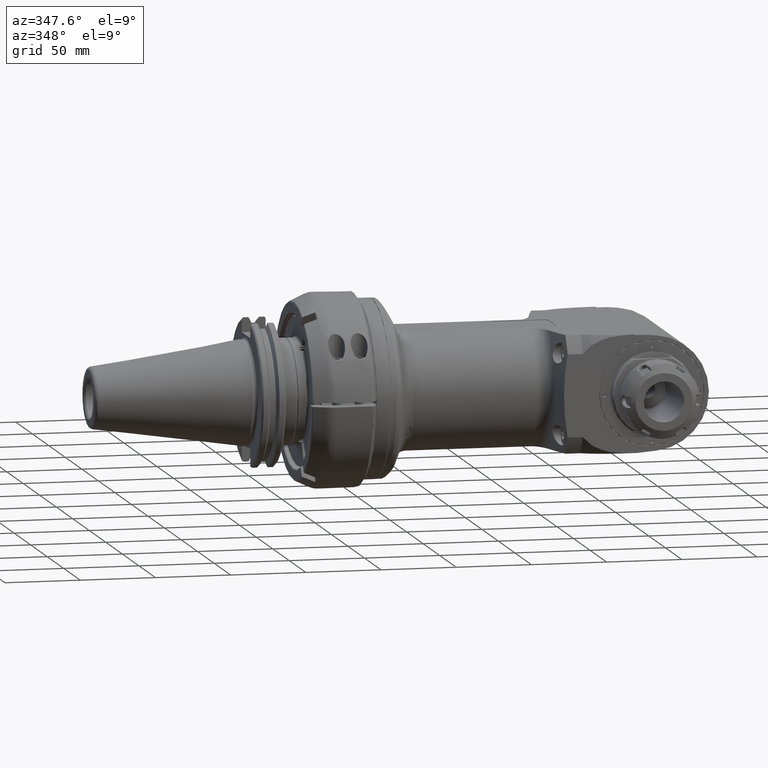
[diagram: clean part render]
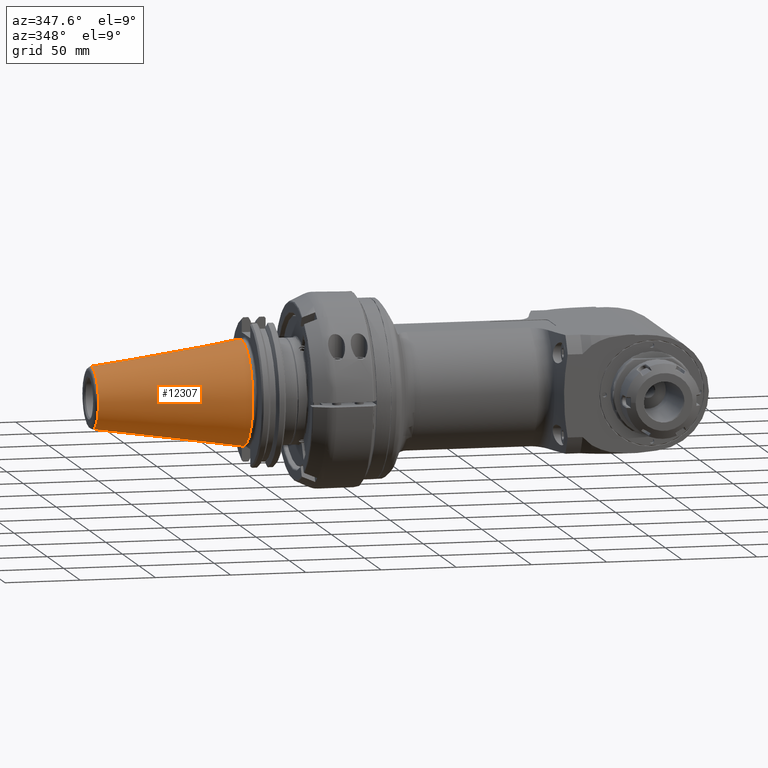
[diagram: same view with one face highlighted and labeled with its STEP entity id]
A machine part, auxiliary view. The second image highlights one B-rep face of the part: STEP entity #12307.
In plain terms, the highlighted conical surface has half-angle 8.297 deg.
Its self-contained STEP definition (entity closure, byte-faithful):
#131=CONICAL_SURFACE('',#13263,27.67265681028,0.144812411498922);
#868=CIRCLE('',#13261,34.925);
#869=CIRCLE('',#13262,34.925);
#870=CIRCLE('',#13264,20.42031362057);
#871=CIRCLE('',#13265,20.42031362057);
#1398=FACE_OUTER_BOUND('',#2082,.T.);
#2082=EDGE_LOOP('',(#8599,#8600,#8601,#8602,#8603,#8604));
#3053=LINE('',#18558,#4001);
#4001=VECTOR('',#14759,27.67265681028);
#5015=VERTEX_POINT('',#18551);
#5016=VERTEX_POINT('',#18552);
#5017=VERTEX_POINT('',#18557);
#5018=VERTEX_POINT('',#18559);
#6441=EDGE_CURVE('',#5015,#5016,#868,.T.);
#6443=EDGE_CURVE('',#5016,#5015,#869,.T.);
#6444=EDGE_CURVE('',#5015,#5017,#3053,.T.);
#6445=EDGE_CURVE('',#5018,#5017,#870,.T.);
#6446=EDGE_CURVE('',#5017,#5018,#871,.T.);
#8599=ORIENTED_EDGE('',*,*,#6441,.F.);
#8600=ORIENTED_EDGE('',*,*,#6444,.T.);
#8601=ORIENTED_EDGE('',*,*,#6445,.F.);
#8602=ORIENTED_EDGE('',*,*,#6446,.F.);
#8603=ORIENTED_EDGE('',*,*,#6444,.F.);
#8604=ORIENTED_EDGE('',*,*,#6443,.F.);
#12307=ADVANCED_FACE('',(#1398),#131,.T.);
#13261=AXIS2_PLACEMENT_3D('',#18553,#14752,#14753);
#13262=AXIS2_PLACEMENT_3D('',#18555,#14755,#14756);
#13263=AXIS2_PLACEMENT_3D('',#18556,#14757,#14758);
#13264=AXIS2_PLACEMENT_3D('',#18560,#14760,#14761);
#13265=AXIS2_PLACEMENT_3D('',#18561,#14762,#14763);
#14752=DIRECTION('center_axis',(1.,0.,0.));
#14753=DIRECTION('ref_axis',(0.,0.,-1.));
#14755=DIRECTION('center_axis',(1.,0.,0.));
#14756=DIRECTION('ref_axis',(0.,0.,-1.));
#14757=DIRECTION('center_axis',(1.,0.,0.));
#14758=DIRECTION('ref_axis',(0.,0.,-1.));
#14759=DIRECTION('',(-0.98953299358046,1.76724869581176E-17,-0.144306807239621));
#14760=DIRECTION('center_axis',(-1.,0.,0.));
#14761=DIRECTION('ref_axis',(0.,0.,-1.));
#14762=DIRECTION('center_axis',(-1.,0.,0.));
#14763=DIRECTION('ref_axis',(0.,0.,-1.));
#18551=CARTESIAN_POINT('',(9.947598300641E-14,0.,34.925));
#18552=CARTESIAN_POINT('',(3.99194566291783E-13,-4.27707894602227E-15,-34.9250000000012));
#18553=CARTESIAN_POINT('Origin',(8.526512829121E-14,0.,0.));
#18555=CARTESIAN_POINT('Origin',(8.526512829121E-14,0.,0.));
#18556=CARTESIAN_POINT('Origin',(-49.73038350905,0.,0.));
#18557=CARTESIAN_POINT('',(-99.4607670180991,-2.50076717130085E-15,20.4203136205638));
#18558=CARTESIAN_POINT('',(-49.73038350905,-3.38892305866126E-15,27.67265681028));
#18559=CARTESIAN_POINT('',(-99.4607670181,20.42031362057,2.50076717130162E-15));
#18560=CARTESIAN_POINT('Origin',(-99.4607670181,0.,0.));
#18561=CARTESIAN_POINT('Origin',(-99.4607670181,0.,0.));